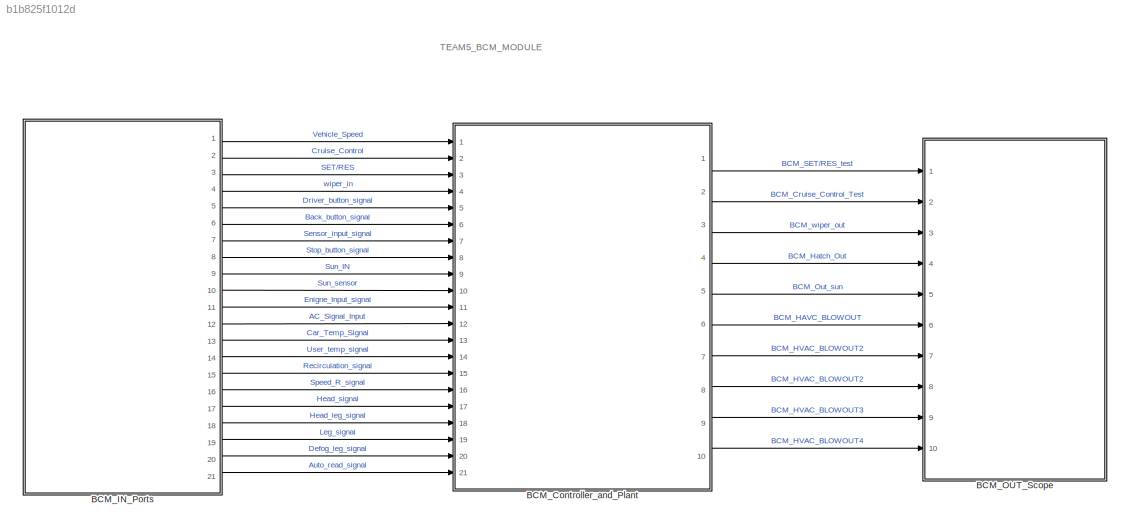
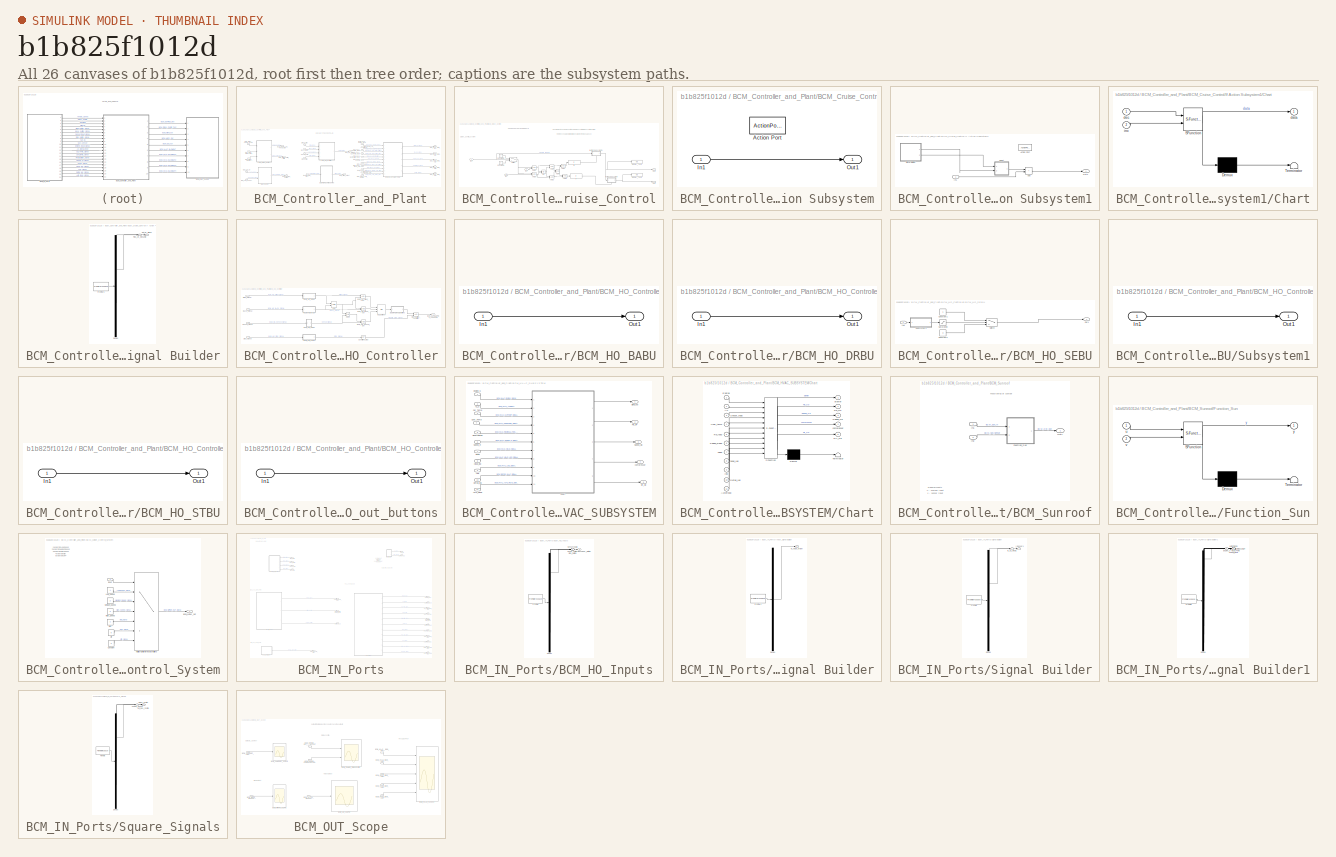
[diagram: thumbnail index - all 26 canvases of the model, root first then tree order]
MODEL slx_b1b825f1012d
KIND model
CONFIG AbsTol = auto
CONFIG EnableMultiTasking = off
CONFIG FixedStep = auto
CONFIG MaxStep = auto
CONFIG MinStep = auto
CONFIG RelTol = 1e-3
CONFIG SampleTimeConstraint = Unconstrained
CONFIG SolverName = VariableStepAuto
CONFIG StartTime = 0.0
CONFIG StopTime = 100
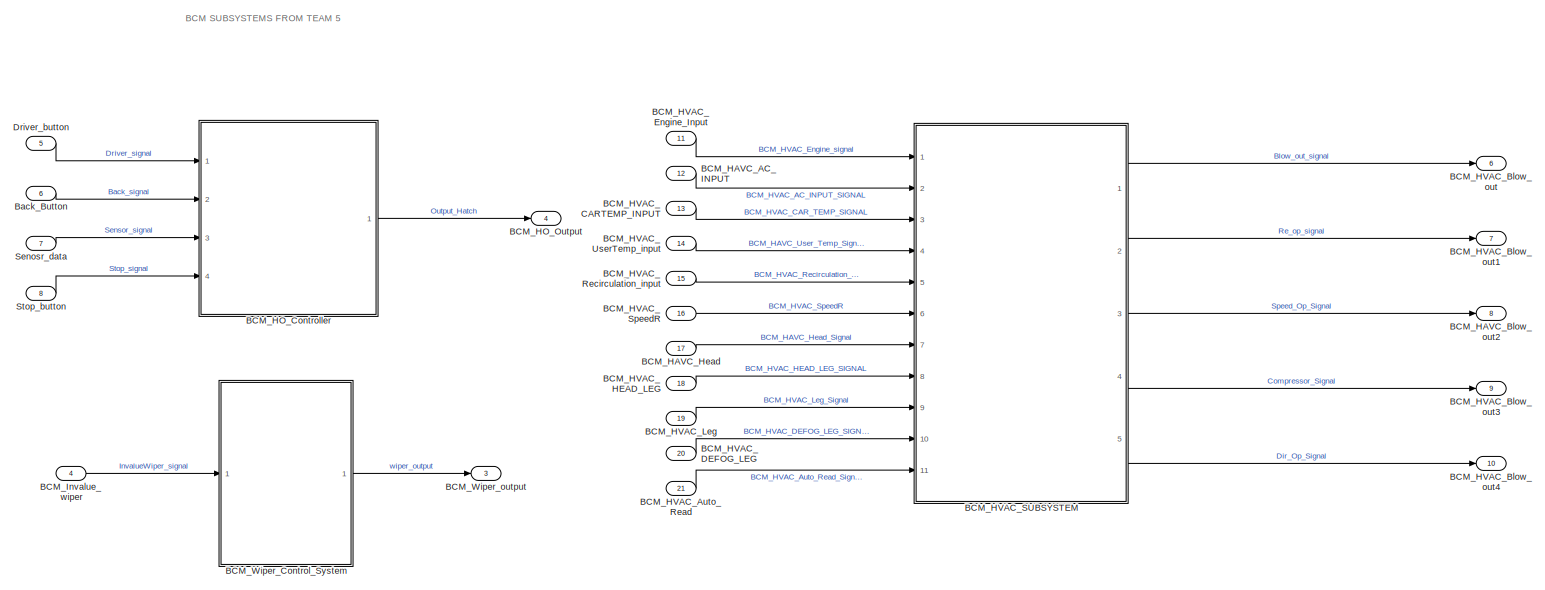
[diagram: BCM_Controller_and_Plant - part 1/2, center side, full height]
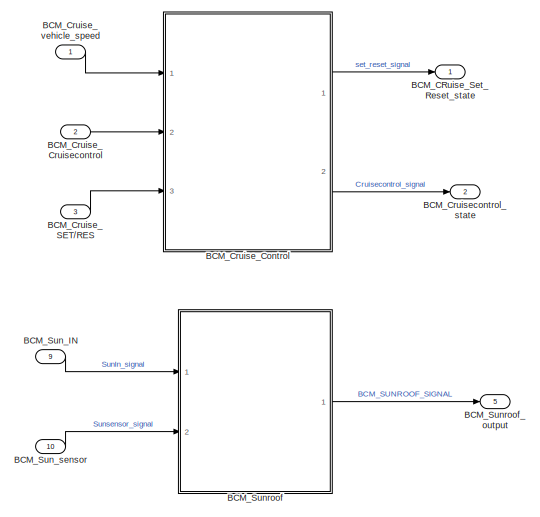
[diagram: BCM_Controller_and_Plant - part 2/2, left side, full height]
BLOCK [SubSystem] BCM_Controller_and_Plant
  Ports = [21, 10]
  RequestExecContextInheritance = off
BLOCK [Outport] BCM_Controller_and_Plant/BCM_CRuise_Set_Reset_state
BLOCK [SubSystem] BCM_Controller_and_Plant/BCM_Cruise_Control
  Ports = [3, 2]
  RequestExecContextInheritance = off
BLOCK [Logic] BCM_Controller_and_Plant/BCM_Cruise_Control/AND
  AllPortsSameDT = off
  IconShape = distinctive
  OutDataTypeStr = boolean
  Ports = [2, 1]
BLOCK [Logic] BCM_Controller_and_Plant/BCM_Cruise_Control/AND1
  AllPortsSameDT = off
  IconShape = distinctive
  OutDataTypeStr = boolean
  Ports = [2, 1]
BLOCK [Logic] BCM_Controller_and_Plant/BCM_Cruise_Control/AND2
  AllPortsSameDT = off
  IconShape = distinctive
  OutDataTypeStr = boolean
  Ports = [2, 1]
BLOCK [Logic] BCM_Controller_and_Plant/BCM_Cruise_Control/AND3
  AllPortsSameDT = off
  IconShape = distinctive
  OutDataTypeStr = boolean
  Ports = [2, 1]
BLOCK [Logic] BCM_Controller_and_Plant/BCM_Cruise_Control/AND4
  AllPortsSameDT = off
  IconShape = distinctive
  OutDataTypeStr = boolean
  Ports = [2, 1]
BLOCK [Logic] BCM_Controller_and_Plant/BCM_Cruise_Control/AND5
  AllPortsSameDT = off
  IconShape = distinctive
  OutDataTypeStr = boolean
  Ports = [2, 1]
BLOCK [Constant] BCM_Controller_and_Plant/BCM_Cruise_Control/Constant2
BLOCK [Constant] BCM_Controller_and_Plant/BCM_Cruise_Control/Constant4
  Value = 0
BLOCK [Display] BCM_Controller_and_Plant/BCM_Cruise_Control/Display_Test1
  Decimation = 1
  Ports = [1]
BLOCK [Display] BCM_Controller_and_Plant/BCM_Cruise_Control/Display_Test2
  Decimation = 1
  Ports = [1]
BLOCK [If] BCM_Controller_and_Plant/BCM_Cruise_Control/If
  IfExpression = u1 == 1
  Ports = [1, 1]
  ShowElse = off
BLOCK [SubSystem] BCM_Controller_and_Plant/BCM_Cruise_Control/If Action Subsystem
  NameLocation = top
  Ports = [1, 1, 0, 0, 0, 0, 0, 1]
  RequestExecContextInheritance = off
  TreatAsAtomicUnit = on
BLOCK [ActionPort] BCM_Controller_and_Plant/BCM_Cruise_Control/If Action Subsystem/Action Port
  ActionPortLabel = if(u1 == 1)
BLOCK [Inport] BCM_Controller_and_Plant/BCM_Cruise_Control/If Action Subsystem/In1
BLOCK [Outport] BCM_Controller_and_Plant/BCM_Cruise_Control/If Action Subsystem/Out1
BLOCK [SubSystem] BCM_Controller_and_Plant/BCM_Cruise_Control/If Action Subsystem1
  NameLocation = top
  Ports = [1, 1, 0, 0, 0, 0, 0, 1]
  RequestExecContextInheritance = off
  TreatAsAtomicUnit = on
BLOCK [ActionPort] BCM_Controller_and_Plant/BCM_Cruise_Control/If Action Subsystem1/Action Port
  ActionPortLabel = if(u1 == 1)
BLOCK [Sum] BCM_Controller_and_Plant/BCM_Cruise_Control/If Action Subsystem1/Add
  IconShape = rectangular
  Ports = [2, 1]
BLOCK [SubSystem] BCM_Controller_and_Plant/BCM_Cruise_Control/If Action Subsystem1/Chart
  ErrorFcn = Stateflow.Translate.translate
  PermitHierarchicalResolution = ExplicitOnly
  Ports = [2, 1]
  RequestExecContextInheritance = off
  SFBlockType = Chart
  TreatAsAtomicUnit = on
BLOCK [Demux] BCM_Controller_and_Plant/BCM_Cruise_Control/If Action Subsystem1/Chart/ Demux 
  Outputs = 1
  Ports = [1, 1]
BLOCK [S-Function] BCM_Controller_and_Plant/BCM_Cruise_Control/If Action Subsystem1/Chart/ SFunction 
  EnableBusSupport = on
  FunctionName = sf_sfun
  PortCounts = [2 2]
  Ports = [2, 2]
  SFcnIsStateOwnerBlock = off
  SFunctionDeploymentMode = off
  Tag = Stateflow S-Function 1
BLOCK [Terminator] BCM_Controller_and_Plant/BCM_Cruise_Control/If Action Subsystem1/Chart/ Terminator 
BLOCK [Outport] BCM_Controller_and_Plant/BCM_Cruise_Control/If Action Subsystem1/Chart/data
BLOCK [Inport] BCM_Controller_and_Plant/BCM_Cruise_Control/If Action Subsystem1/Chart/dec
BLOCK [Inport] BCM_Controller_and_Plant/BCM_Cruise_Control/If Action Subsystem1/Chart/inc
  Port = 2
BLOCK [Inport] BCM_Controller_and_Plant/BCM_Cruise_Control/If Action Subsystem1/In1
BLOCK [Outport] BCM_Controller_and_Plant/BCM_Cruise_Control/If Action Subsystem1/Out1
BLOCK [SubSystem] BCM_Controller_and_Plant/BCM_Cruise_Control/If Action Subsystem1/Signal Builder
  ClipboardFcn = sigbuilder_block('clipboard');
  CloseFcn = sigbuilder_block('close');
  ContinueFcn = sigbuilder_block('continue');
  CopyFcn = sigbuilder_block('copy');
  DeleteFcn = sigbuilder_block('delete');
  LoadFcn = sigbuilder_block('load');
  MaskHideContents = on
  ModelCloseFcn = sigbuilder_block('modelClose');
  NameChangeFcn = sigbuilder_block('namechange');
  OpenFcn = sigbuilder_block('open',[0.75 30.75 718.5 715.5 ]);
  PauseFcn = sigbuilder_block('pause');
  Ports = [0, 2]
  PreSaveFcn = sigbuilder_block('preSave');
  RequestExecContextInheritance = off
  StartFcn = sigbuilder_block('start');
  StopFcn = sigbuilder_block('stop');
  Tag = STV Subsys
BLOCK [Demux] BCM_Controller_and_Plant/BCM_Cruise_Control/If Action Subsystem1/Signal Builder/Demux
  DisplayOption = none
  Outputs = 2
  Ports = [1, 2]
  Tag = STV Demux
BLOCK [FromWorkspace] BCM_Controller_and_Plant/BCM_Cruise_Control/If Action Subsystem1/Signal Builder/FromWs
  Tag = STV FromWs
  VariableName = tuvar
BLOCK [Outport] BCM_Controller_and_Plant/BCM_Cruise_Control/If Action Subsystem1/Signal Builder/Plus_Or_Resume
  Tag = STV Outport
BLOCK [Outport] BCM_Controller_and_Plant/BCM_Cruise_Control/If Action Subsystem1/Signal Builder/Set_Or_Minus
  Port = 2
  Tag = STV Outport
BLOCK [If] BCM_Controller_and_Plant/BCM_Cruise_Control/If1
  IfExpression = u1 == 1
  Ports = [1, 1]
  ShowElse = off
BLOCK [Inport] BCM_Controller_and_Plant/BCM_Cruise_Control/In1
BLOCK [Inport] BCM_Controller_and_Plant/BCM_Cruise_Control/In2
  Port = 2
BLOCK [Inport] BCM_Controller_and_Plant/BCM_Cruise_Control/In3
  Port = 3
BLOCK [Logic] BCM_Controller_and_Plant/BCM_Cruise_Control/OR
  AllPortsSameDT = off
  IconShape = distinctive
  Operator = OR
  OutDataTypeStr = boolean
  Ports = [2, 1]
BLOCK [Outport] BCM_Controller_and_Plant/BCM_Cruise_Control/Out1
BLOCK [Outport] BCM_Controller_and_Plant/BCM_Cruise_Control/Out2
  Port = 2
BLOCK [Switch] BCM_Controller_and_Plant/BCM_Cruise_Control/Switch
  InputSameDT = off
  SaturateOnIntegerOverflow = off
  Threshold = 40
BLOCK [Logic] BCM_Controller_and_Plant/BCM_Cruise_Control/XOR
  AllPortsSameDT = off
  IconShape = distinctive
  Operator = XOR
  OutDataTypeStr = boolean
  Ports = [2, 1]
BLOCK [Inport] BCM_Controller_and_Plant/BCM_Cruise_Cruisecontrol
  Port = 2
BLOCK [Inport] BCM_Controller_and_Plant/BCM_Cruise_SET//RES
  Port = 3
BLOCK [Inport] BCM_Controller_and_Plant/BCM_Cruise_vehicle_speed
BLOCK [Outport] BCM_Controller_and_Plant/BCM_Cruisecontrol_state
  Port = 2
BLOCK [Inport] BCM_Controller_and_Plant/BCM_HAVC_AC_INPUT
  Port = 12
BLOCK [Outport] BCM_Controller_and_Plant/BCM_HAVC_Blow_out2
  Port = 8
BLOCK [Inport] BCM_Controller_and_Plant/BCM_HAVC_Head
  Port = 17
BLOCK [SubSystem] BCM_Controller_and_Plant/BCM_HO_Controller
  Ports = [4, 1]
  RequestExecContextInheritance = off
BLOCK [Outport] BCM_Controller_and_Plant/BCM_HO_Controller/BCM_HATCHOPEN_CONDITION
BLOCK [SubSystem] BCM_Controller_and_Plant/BCM_HO_Controller/BCM_HO_BABU
  Ports = [1, 1]
  RequestExecContextInheritance = off
BLOCK [Inport] BCM_Controller_and_Plant/BCM_HO_Controller/BCM_HO_BABU/In1
BLOCK [Outport] BCM_Controller_and_Plant/BCM_HO_Controller/BCM_HO_BABU/Out1
BLOCK [Logic] BCM_Controller_and_Plant/BCM_HO_Controller/BCM_HO_Back_out
  AllPortsSameDT = off
  IconShape = distinctive
  OutDataTypeStr = boolean
  Ports = [2, 1]
BLOCK [SubSystem] BCM_Controller_and_Plant/BCM_HO_Controller/BCM_HO_DRBU
  Ports = [1, 1]
  RequestExecContextInheritance = off
BLOCK [Inport] BCM_Controller_and_Plant/BCM_HO_Controller/BCM_HO_DRBU/In1
BLOCK [Outport] BCM_Controller_and_Plant/BCM_HO_Controller/BCM_HO_DRBU/Out1
BLOCK [Logic] BCM_Controller_and_Plant/BCM_HO_Controller/BCM_HO_Driver_out
  AllPortsSameDT = off
  IconShape = distinctive
  OutDataTypeStr = boolean
  Ports = [2, 1]
BLOCK [SubSystem] BCM_Controller_and_Plant/BCM_HO_Controller/BCM_HO_SEBU
  Ports = [1, 1]
  RequestExecContextInheritance = off
BLOCK [Constant] BCM_Controller_and_Plant/BCM_HO_Controller/BCM_HO_SEBU/Constant1
BLOCK [Constant] BCM_Controller_and_Plant/BCM_HO_Controller/BCM_HO_SEBU/Constant2
  Value = 0
BLOCK [Inport] BCM_Controller_and_Plant/BCM_HO_Controller/BCM_HO_SEBU/In1
BLOCK [Outport] BCM_Controller_and_Plant/BCM_HO_Controller/BCM_HO_SEBU/Out1
BLOCK [Saturate] BCM_Controller_and_Plant/BCM_HO_Controller/BCM_HO_SEBU/Saturation
  LowerLimit = 0
  UpperLimit = 3.6
BLOCK [SubSystem] BCM_Controller_and_Plant/BCM_HO_Controller/BCM_HO_SEBU/Subsystem1
  Ports = [1, 1]
  RequestExecContextInheritance = off
BLOCK [Inport] BCM_Controller_and_Plant/BCM_HO_Controller/BCM_HO_SEBU/Subsystem1/In1
BLOCK [Outport] BCM_Controller_and_Plant/BCM_HO_Controller/BCM_HO_SEBU/Subsystem1/Out1
BLOCK [Switch] BCM_Controller_and_Plant/BCM_HO_Controller/BCM_HO_SEBU/Switch
  Criteria = u2 > Threshold
  InputSameDT = off
  SaturateOnIntegerOverflow = off
  Threshold = 2.3
BLOCK [SubSystem] BCM_Controller_and_Plant/BCM_HO_Controller/BCM_HO_STBU
  Ports = [1, 1]
  RequestExecContextInheritance = off
BLOCK [Inport] BCM_Controller_and_Plant/BCM_HO_Controller/BCM_HO_STBU/In1
BLOCK [Outport] BCM_Controller_and_Plant/BCM_HO_Controller/BCM_HO_STBU/Out1
BLOCK [Logic] BCM_Controller_and_Plant/BCM_HO_Controller/BCM_HO_Sensor_Out
  AllPortsSameDT = off
  IconShape = distinctive
  OutDataTypeStr = boolean
  Ports = [2, 1]
BLOCK [SubSystem] BCM_Controller_and_Plant/BCM_HO_Controller/BCM_HO_out_buttons
  Ports = [1, 1]
  RequestExecContextInheritance = off
BLOCK [Inport] BCM_Controller_and_Plant/BCM_HO_Controller/BCM_HO_out_buttons/In1
BLOCK [Outport] BCM_Controller_and_Plant/BCM_HO_Controller/BCM_HO_out_buttons/Out1
BLOCK [Inport] BCM_Controller_and_Plant/BCM_HO_Controller/Back_Signal
  Port = 2
BLOCK [Logic] BCM_Controller_and_Plant/BCM_HO_Controller/Condition_Stop
  AllPortsSameDT = off
  IconShape = distinctive
  Operator = NOT
  OutDataTypeStr = boolean
  Ports = [1, 1]
BLOCK [Inport] BCM_Controller_and_Plant/BCM_HO_Controller/Driver_Signal
BLOCK [Logic] BCM_Controller_and_Plant/BCM_HO_Controller/Out_Buttons
  AllPortsSameDT = off
  IconShape = distinctive
  Inputs = 3
  Operator = OR
  OutDataTypeStr = boolean
  Ports = [3, 1]
BLOCK [Inport] BCM_Controller_and_Plant/BCM_HO_Controller/Sensor_signal
  Port = 3
BLOCK [Logic] BCM_Controller_and_Plant/BCM_HO_Controller/Stop_button_condition
  AllPortsSameDT = off
  IconShape = distinctive
  OutDataTypeStr = boolean
  Ports = [2, 1]
BLOCK [Inport] BCM_Controller_and_Plant/BCM_HO_Controller/Stop_signal
  Port = 4
BLOCK [Logic] BCM_Controller_and_Plant/BCM_HO_Controller/XOR
  AllPortsSameDT = off
  IconShape = distinctive
  Operator = XOR
  OutDataTypeStr = boolean
  Ports = [2, 1]
BLOCK [Logic] BCM_Controller_and_Plant/BCM_HO_Controller/XOR1
  AllPortsSameDT = off
  IconShape = distinctive
  Operator = XOR
  OutDataTypeStr = boolean
  Ports = [2, 1]
BLOCK [Outport] BCM_Controller_and_Plant/BCM_HO_Output
  Port = 4
BLOCK [Inport] BCM_Controller_and_Plant/BCM_HVAC_Auto_Read
  Port = 21
BLOCK [Outport] BCM_Controller_and_Plant/BCM_HVAC_Blow_out
  Port = 6
BLOCK [Outport] BCM_Controller_and_Plant/BCM_HVAC_Blow_out1
  Port = 7
BLOCK [Outport] BCM_Controller_and_Plant/BCM_HVAC_Blow_out3
  Port = 9
BLOCK [Outport] BCM_Controller_and_Plant/BCM_HVAC_Blow_out4
  Port = 10
BLOCK [Inport] BCM_Controller_and_Plant/BCM_HVAC_CARTEMP_INPUT
  Port = 13
BLOCK [Inport] BCM_Controller_and_Plant/BCM_HVAC_DEFOG_LEG
  Port = 20
BLOCK [Inport] BCM_Controller_and_Plant/BCM_HVAC_Engine_Input
  Port = 11
BLOCK [Inport] BCM_Controller_and_Plant/BCM_HVAC_HEAD_LEG
  Port = 18
BLOCK [Inport] BCM_Controller_and_Plant/BCM_HVAC_Leg
  Port = 19
BLOCK [Inport] BCM_Controller_and_Plant/BCM_HVAC_Recirculation_input
  Port = 15
BLOCK [SubSystem] BCM_Controller_and_Plant/BCM_HVAC_SUBSYSTEM
  Ports = [11, 5]
  RequestExecContextInheritance = off
BLOCK [Inport] BCM_Controller_and_Plant/BCM_HVAC_SUBSYSTEM/AC_S
  Port = 2
BLOCK [Inport] BCM_Controller_and_Plant/BCM_HVAC_SUBSYSTEM/Auto_Read
  Port = 11
BLOCK [Outport] BCM_Controller_and_Plant/BCM_HVAC_SUBSYSTEM/Blow_out
BLOCK [Inport] BCM_Controller_and_Plant/BCM_HVAC_SUBSYSTEM/Car_Temp
  Port = 3
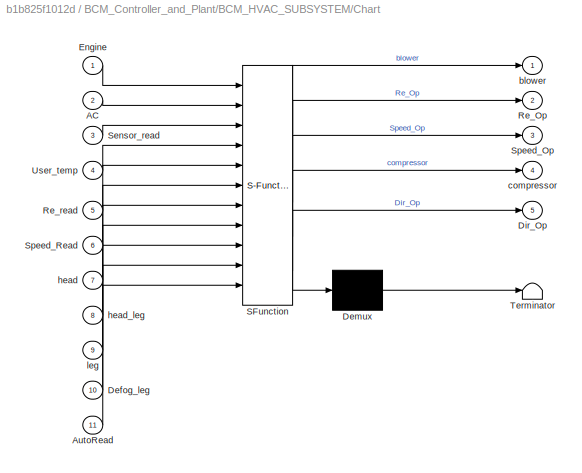
BLOCK [SubSystem] BCM_Controller_and_Plant/BCM_HVAC_SUBSYSTEM/Chart
  ErrorFcn = Stateflow.Translate.translate
  PermitHierarchicalResolution = ExplicitOnly
  Ports = [11, 5]
  RequestExecContextInheritance = off
  SFBlockType = Chart
  TreatAsAtomicUnit = on
BLOCK [Demux] BCM_Controller_and_Plant/BCM_HVAC_SUBSYSTEM/Chart/ Demux 
  Outputs = 1
  Ports = [1, 1]
BLOCK [S-Function] BCM_Controller_and_Plant/BCM_HVAC_SUBSYSTEM/Chart/ SFunction 
  EnableBusSupport = on
  FunctionName = sf_sfun
  PortCounts = [11 6]
  Ports = [11, 6]
  SFcnIsStateOwnerBlock = off
  SFunctionDeploymentMode = off
  Tag = Stateflow S-Function 3
BLOCK [Terminator] BCM_Controller_and_Plant/BCM_HVAC_SUBSYSTEM/Chart/ Terminator 
BLOCK [Inport] BCM_Controller_and_Plant/BCM_HVAC_SUBSYSTEM/Chart/AC
  Port = 2
BLOCK [Inport] BCM_Controller_and_Plant/BCM_HVAC_SUBSYSTEM/Chart/AutoRead
  Port = 11
BLOCK [Inport] BCM_Controller_and_Plant/BCM_HVAC_SUBSYSTEM/Chart/Defog_leg
  Port = 10
BLOCK [Outport] BCM_Controller_and_Plant/BCM_HVAC_SUBSYSTEM/Chart/Dir_Op
  Port = 5
BLOCK [Inport] BCM_Controller_and_Plant/BCM_HVAC_SUBSYSTEM/Chart/Engine
BLOCK [Outport] BCM_Controller_and_Plant/BCM_HVAC_SUBSYSTEM/Chart/Re_Op
  Port = 2
BLOCK [Inport] BCM_Controller_and_Plant/BCM_HVAC_SUBSYSTEM/Chart/Re_read
  Port = 5
BLOCK [Inport] BCM_Controller_and_Plant/BCM_HVAC_SUBSYSTEM/Chart/Sensor_read
  Port = 3
BLOCK [Outport] BCM_Controller_and_Plant/BCM_HVAC_SUBSYSTEM/Chart/Speed_Op
  Port = 3
BLOCK [Inport] BCM_Controller_and_Plant/BCM_HVAC_SUBSYSTEM/Chart/Speed_Read
  Port = 6
BLOCK [Inport] BCM_Controller_and_Plant/BCM_HVAC_SUBSYSTEM/Chart/User_temp
  Port = 4
BLOCK [Outport] BCM_Controller_and_Plant/BCM_HVAC_SUBSYSTEM/Chart/blower
BLOCK [Outport] BCM_Controller_and_Plant/BCM_HVAC_SUBSYSTEM/Chart/compressor
  Port = 4
BLOCK [Inport] BCM_Controller_and_Plant/BCM_HVAC_SUBSYSTEM/Chart/head
  Port = 7
BLOCK [Inport] BCM_Controller_and_Plant/BCM_HVAC_SUBSYSTEM/Chart/head_leg
  Port = 8
BLOCK [Inport] BCM_Controller_and_Plant/BCM_HVAC_SUBSYSTEM/Chart/leg
  Port = 9
BLOCK [Inport] BCM_Controller_and_Plant/BCM_HVAC_SUBSYSTEM/Defog_leg
  Port = 10
BLOCK [Inport] BCM_Controller_and_Plant/BCM_HVAC_SUBSYSTEM/Engine_S
BLOCK [Inport] BCM_Controller_and_Plant/BCM_HVAC_SUBSYSTEM/Head
  Port = 7
BLOCK [Inport] BCM_Controller_and_Plant/BCM_HVAC_SUBSYSTEM/Head_leg
  Port = 8
BLOCK [Inport] BCM_Controller_and_Plant/BCM_HVAC_SUBSYSTEM/Leg
  Port = 9
BLOCK [Outport] BCM_Controller_and_Plant/BCM_HVAC_SUBSYSTEM/Re_OP
  Port = 2
BLOCK [Inport] BCM_Controller_and_Plant/BCM_HVAC_SUBSYSTEM/Recirculation
  Port = 5
BLOCK [Outport] BCM_Controller_and_Plant/BCM_HVAC_SUBSYSTEM/Speed_Op
  Port = 3
BLOCK [Inport] BCM_Controller_and_Plant/BCM_HVAC_SUBSYSTEM/Speed_R
  Port = 6
BLOCK [Inport] BCM_Controller_and_Plant/BCM_HVAC_SUBSYSTEM/User_Temp
  Port = 4
BLOCK [Outport] BCM_Controller_and_Plant/BCM_HVAC_SUBSYSTEM/compressor
  Port = 4
BLOCK [Outport] BCM_Controller_and_Plant/BCM_HVAC_SUBSYSTEM/dir_Op
  Port = 5
BLOCK [Inport] BCM_Controller_and_Plant/BCM_HVAC_SpeedR
  Port = 16
BLOCK [Inport] BCM_Controller_and_Plant/BCM_HVAC_UserTemp_input
  Port = 14
BLOCK [Inport] BCM_Controller_and_Plant/BCM_Invalue_wiper
  Port = 4
BLOCK [Inport] BCM_Controller_and_Plant/BCM_Sun_IN
  Port = 9
BLOCK [Inport] BCM_Controller_and_Plant/BCM_Sun_sensor
  Port = 10
BLOCK [SubSystem] BCM_Controller_and_Plant/BCM_Sunroof
  Ports = [2, 1]
  RequestExecContextInheritance = off
BLOCK [SubSystem] BCM_Controller_and_Plant/BCM_Sunroof/Function_Sun
  ErrorFcn = Stateflow.Translate.translate
  PermitHierarchicalResolution = ExplicitOnly
  Ports = [2, 1]
  RequestExecContextInheritance = off
  SFBlockType = MATLAB Function
  TreatAsAtomicUnit = on
BLOCK [Demux] BCM_Controller_and_Plant/BCM_Sunroof/Function_Sun/ Demux 
  Outputs = 1
  Ports = [1, 1]
BLOCK [S-Function] BCM_Controller_and_Plant/BCM_Sunroof/Function_Sun/ SFunction 
  EnableBusSupport = on
  FunctionName = sf_sfun
  PortCounts = [2 2]
  Ports = [2, 2]
  SFcnIsStateOwnerBlock = off
  SFunctionDeploymentMode = off
  Tag = Stateflow S-Function 2
BLOCK [Terminator] BCM_Controller_and_Plant/BCM_Sunroof/Function_Sun/ Terminator 
BLOCK [Inport] BCM_Controller_and_Plant/BCM_Sunroof/Function_Sun/u
BLOCK [Inport] BCM_Controller_and_Plant/BCM_Sunroof/Function_Sun/v
  Port = 2
BLOCK [Outport] BCM_Controller_and_Plant/BCM_Sunroof/Function_Sun/y
BLOCK [Inport] BCM_Controller_and_Plant/BCM_Sunroof/In1
BLOCK [Inport] BCM_Controller_and_Plant/BCM_Sunroof/In2
  Port = 2
BLOCK [Outport] BCM_Controller_and_Plant/BCM_Sunroof/Out1
BLOCK [Outport] BCM_Controller_and_Plant/BCM_Sunroof_output
  Port = 5
BLOCK [SubSystem] BCM_Controller_and_Plant/BCM_Wiper_Control_System
  Ports = [1, 1]
  RequestExecContextInheritance = off
BLOCK [Outport] BCM_Controller_and_Plant/BCM_Wiper_Control_System/BCM_Wiper_Out
BLOCK [Constant] BCM_Controller_and_Plant/BCM_Wiper_Control_System/Constant
  Value = 0
BLOCK [Constant] BCM_Controller_and_Plant/BCM_Wiper_Control_System/High_Speed
  Value = 3
BLOCK [Inport] BCM_Controller_and_Plant/BCM_Wiper_Control_System/Input
BLOCK [Constant] BCM_Controller_and_Plant/BCM_Wiper_Control_System/Low_Speed
BLOCK [Constant] BCM_Controller_and_Plant/BCM_Wiper_Control_System/Medium_Speed
  Value = 2
BLOCK [Constant] BCM_Controller_and_Plant/BCM_Wiper_Control_System/Mist
  Value = 4
BLOCK [MultiPortSwitch] BCM_Controller_and_Plant/BCM_Wiper_Control_System/Multiport Switch for input conditions
  DiagnosticForDefault = None
  InputSameDT = off
  Inputs = 6
  Ports = [7, 1]
  SaturateOnIntegerOverflow = off
BLOCK [Constant] BCM_Controller_and_Plant/BCM_Wiper_Control_System/Off
  Value = 5
BLOCK [Outport] BCM_Controller_and_Plant/BCM_Wiper_output
  Port = 3
BLOCK [Inport] BCM_Controller_and_Plant/Back_Button
  Port = 6
BLOCK [Inport] BCM_Controller_and_Plant/Driver_button
  Port = 5
BLOCK [Inport] BCM_Controller_and_Plant/Senosr_data
  Port = 7
BLOCK [Inport] BCM_Controller_and_Plant/Stop_button
  Port = 8
BLOCK [SubSystem] BCM_IN_Ports
  Ports = [0, 21]
  RequestExecContextInheritance = off
BLOCK [Outport] BCM_IN_Ports/AC_Signal_Input
  Port = 12
BLOCK [Outport] BCM_IN_Ports/Auto_Read_signal_Input
  Port = 21
BLOCK [SubSystem] BCM_IN_Ports/BCM_HO_Inputs
  ClipboardFcn = sigbuilder_block('clipboard');
  CloseFcn = sigbuilder_block('close');
  ContinueFcn = sigbuilder_block('continue');
  CopyFcn = sigbuilder_block('copy');
  DeleteFcn = sigbuilder_block('delete');
  LoadFcn = sigbuilder_block('load');
  MaskHideContents = on
  ModelCloseFcn = sigbuilder_block('modelClose');
  NameChangeFcn = sigbuilder_block('namechange');
  OpenFcn = sigbuilder_block('open',[437.6 199.2 550.4 400 ]);
  PauseFcn = sigbuilder_block('pause');
  Ports = [0, 4]
  PreSaveFcn = sigbuilder_block('preSave');
  RequestExecContextInheritance = off
  StartFcn = sigbuilder_block('start');
  StopFcn = sigbuilder_block('stop');
  Tag = STV Subsys
BLOCK [Outport] BCM_IN_Ports/BCM_HO_Inputs/BackDoor_Button
  Port = 2
  Tag = STV Outport
BLOCK [Demux] BCM_IN_Ports/BCM_HO_Inputs/Demux
  DisplayOption = none
  Ports = [1, 4]
  Tag = STV Demux
BLOCK [Outport] BCM_IN_Ports/BCM_HO_Inputs/Driver_button
  Tag = STV Outport
BLOCK [FromWorkspace] BCM_IN_Ports/BCM_HO_Inputs/FromWs
  Tag = STV FromWs
  VariableName = tuvar
BLOCK [Outport] BCM_IN_Ports/BCM_HO_Inputs/Sensore Data
  Port = 3
  Tag = STV Outport
BLOCK [Outport] BCM_IN_Ports/BCM_HO_Inputs/Stop_Button
  Port = 4
  Tag = STV Outport
BLOCK [Outport] BCM_IN_Ports/BCM_IN_VALUE_Wiper
  Port = 4
BLOCK [Outport] BCM_IN_Ports/Back_Button
  Port = 6
BLOCK [Outport] BCM_IN_Ports/Car_Temp_Signal_input
  Port = 13
BLOCK [Outport] BCM_IN_Ports/Cruise_control_speed_input
  Port = 2
BLOCK [Outport] BCM_IN_Ports/Defog_Leg_signal_Input
  Port = 20
BLOCK [Outport] BCM_IN_Ports/Driver_button
  Port = 5
BLOCK [Outport] BCM_IN_Ports/Engine_Input
  Port = 11
BLOCK [Outport] BCM_IN_Ports/Head_leg_signal_Input
  Port = 18
BLOCK [Outport] BCM_IN_Ports/Head_signal_Input
  Port = 17
BLOCK [SubSystem] BCM_IN_Ports/Input_Signal Builder
  ClipboardFcn = sigbuilder_block('clipboard');
  CloseFcn = sigbuilder_block('close');
  ContinueFcn = sigbuilder_block('continue');
  CopyFcn = sigbuilder_block('copy');
  DeleteFcn = sigbuilder_block('delete');
  LoadFcn = sigbuilder_block('load');
  MaskHideContents = on
  ModelCloseFcn = sigbuilder_block('modelClose');
  NameChangeFcn = sigbuilder_block('namechange');
  OpenFcn = sigbuilder_block('open',[339 188.25 550.5 359.25 ]);
  PauseFcn = sigbuilder_block('pause');
  Ports = [0, 1]
  PreSaveFcn = sigbuilder_block('preSave');
  RequestExecContextInheritance = off
  StartFcn = sigbuilder_block('start');
  StopFcn = sigbuilder_block('stop');
  Tag = STV Subsys
BLOCK [Demux] BCM_IN_Ports/Input_Signal Builder/Demux
  DisplayOption = none
  Outputs = 1
  Ports = [1, 1]
  Tag = STV Demux
BLOCK [FromWorkspace] BCM_IN_Ports/Input_Signal Builder/FromWs
  Tag = STV FromWs
  VariableName = tuvar
BLOCK [Outport] BCM_IN_Ports/Input_Signal Builder/In_Value_Wiper
  Tag = STV Outport
BLOCK [Outport] BCM_IN_Ports/Leg_signal_Input
  Port = 19
BLOCK [Outport] BCM_IN_Ports/Recirculation_signal_Input
  Port = 15
BLOCK [Outport] BCM_IN_Ports/Senosr_data
  Port = 7
BLOCK [Outport] BCM_IN_Ports/Set_res_input
  Port = 3
BLOCK [SubSystem] BCM_IN_Ports/Signal Builder
  ClipboardFcn = sigbuilder_block('clipboard');
  CloseFcn = sigbuilder_block('close');
  ContinueFcn = sigbuilder_block('continue');
  CopyFcn = sigbuilder_block('copy');
  DeleteFcn = sigbuilder_block('delete');
  LoadFcn = sigbuilder_block('load');
  MaskHideContents = on
  ModelCloseFcn = sigbuilder_block('modelClose');
  NameChangeFcn = sigbuilder_block('namechange');
  OpenFcn = sigbuilder_block('open',[534 -108 550.5 359.25 ]);
  PauseFcn = sigbuilder_block('pause');
  Ports = [0, 2]
  PreSaveFcn = sigbuilder_block('preSave');
  RequestExecContextInheritance = off
  StartFcn = sigbuilder_block('start');
  StopFcn = sigbuilder_block('stop');
  Tag = STV Subsys
BLOCK [Demux] BCM_IN_Ports/Signal Builder/Demux
  DisplayOption = none
  Outputs = 2
  Ports = [1, 2]
  Tag = STV Demux
BLOCK [FromWorkspace] BCM_IN_Ports/Signal Builder/FromWs
  Tag = STV FromWs
  VariableName = tuvar
BLOCK [Outport] BCM_IN_Ports/Signal Builder/I_Sensor1
  Port = 2
  Tag = STV Outport
BLOCK [Outport] BCM_IN_Ports/Signal Builder/In_Su_Roof1
  Tag = STV Outport
BLOCK [SubSystem] BCM_IN_Ports/Signal Builder1
  ClipboardFcn = sigbuilder_block('clipboard');
  CloseFcn = sigbuilder_block('close');
  ContinueFcn = sigbuilder_block('continue');
  CopyFcn = sigbuilder_block('copy');
  DeleteFcn = sigbuilder_block('delete');
  LoadFcn = sigbuilder_block('load');
  MaskHideContents = on
  ModelCloseFcn = sigbuilder_block('modelClose');
  NameChangeFcn = sigbuilder_block('namechange');
  OpenFcn = sigbuilder_block('open',[437.6 199.2 550.4 400 ]);
  PauseFcn = sigbuilder_block('pause');
  Ports = [0, 11]
  PreSaveFcn = sigbuilder_block('preSave');
  RequestExecContextInheritance = off
  StartFcn = sigbuilder_block('start');
  StopFcn = sigbuilder_block('stop');
  Tag = STV Subsys
BLOCK [Outport] BCM_IN_Ports/Signal Builder1/      Engine_S  
  Tag = STV Outport
BLOCK [Outport] BCM_IN_Ports/Signal Builder1/AC_S
  Port = 2
  Tag = STV Outport
BLOCK [Outport] BCM_IN_Ports/Signal Builder1/Auto_Read
  Port = 11
  Tag = STV Outport
BLOCK [Outport] BCM_IN_Ports/Signal Builder1/Car_Temp
  Port = 3
  Tag = STV Outport
BLOCK [Outport] BCM_IN_Ports/Signal Builder1/Defog_Leg
  Port = 10
  Tag = STV Outport
BLOCK [Demux] BCM_IN_Ports/Signal Builder1/Demux
  DisplayOption = none
  Outputs = 11
  Ports = [1, 11]
  Tag = STV Demux
BLOCK [FromWorkspace] BCM_IN_Ports/Signal Builder1/FromWs
  Tag = STV FromWs
  VariableName = tuvar
BLOCK [Outport] BCM_IN_Ports/Signal Builder1/Head
  Port = 7
  Tag = STV Outport
BLOCK [Outport] BCM_IN_Ports/Signal Builder1/Head_leg
  Port = 8
  Tag = STV Outport
BLOCK [Outport] BCM_IN_Ports/Signal Builder1/Leg
  Port = 9
  Tag = STV Outport
BLOCK [Outport] BCM_IN_Ports/Signal Builder1/Recirculation
  Port = 5
  Tag = STV Outport
BLOCK [Outport] BCM_IN_Ports/Signal Builder1/Speed_R
  Port = 6
  Tag = STV Outport
BLOCK [Outport] BCM_IN_Ports/Signal Builder1/User_Temp
  Port = 4
  Tag = STV Outport
BLOCK [Outport] BCM_IN_Ports/Speed_R_input
  Port = 16
BLOCK [SubSystem] BCM_IN_Ports/Square_Signals
  ClipboardFcn = sigbuilder_block('clipboard');
  CloseFcn = sigbuilder_block('close');
  ContinueFcn = sigbuilder_block('continue');
  CopyFcn = sigbuilder_block('copy');
  DeleteFcn = sigbuilder_block('delete');
  LoadFcn = sigbuilder_block('load');
  MaskHideContents = on
  ModelCloseFcn = sigbuilder_block('modelClose');
  NameChangeFcn = sigbuilder_block('namechange');
  OpenFcn = sigbuilder_block('open',[6 30 1012.5 447.75 ]);
  PauseFcn = sigbuilder_block('pause');
  Ports = [0, 3]
  PreSaveFcn = sigbuilder_block('preSave');
  RequestExecContextInheritance = off
  StartFcn = sigbuilder_block('start');
  StopFcn = sigbuilder_block('stop');
  Tag = STV Subsys
BLOCK [Outport] BCM_IN_Ports/Square_Signals/Cruise_Control
  Port = 2
  Tag = STV Outport
BLOCK [Demux] BCM_IN_Ports/Square_Signals/Demux
  DisplayOption = none
  Outputs = 3
  Ports = [1, 3]
  Tag = STV Demux
BLOCK [FromWorkspace] BCM_IN_Ports/Square_Signals/FromWs
  Tag = STV FromWs
  VariableName = tuvar
BLOCK [Outport] BCM_IN_Ports/Square_Signals/Set_Res_Control
  Port = 3
  Tag = STV Outport
BLOCK [Outport] BCM_IN_Ports/Square_Signals/Vehicle_Speed
  Tag = STV Outport
BLOCK [Outport] BCM_IN_Ports/Stop_button
  Port = 8
BLOCK [Outport] BCM_IN_Ports/Sun_IN
  Port = 9
BLOCK [Outport] BCM_IN_Ports/Sun_sensor
  Port = 10
BLOCK [Outport] BCM_IN_Ports/User_Temp_Input
  Port = 14
BLOCK [Outport] BCM_IN_Ports/Vehicle_speed_input
BLOCK [SubSystem] BCM_OUT_Scope
  Ports = [10]
  RequestExecContextInheritance = off
BLOCK [Inport] BCM_OUT_Scope/BCM_CRUISE_CRUISECONTROL
  Port = 2
BLOCK [Scope] BCM_OUT_Scope/BCM_CRUISE_CruiseControl
  Floating = off
  NumInputPorts = 2
  Ports = [2]
  ScopeSpecificationString = Simulink.scopes.TimeScopeBlockCfg('CurrentConfiguration', extmgr.ConfigurationSet(extmgr.Configuration('Core','General UI',true),extmgr.Configuration('Core','Source UI',true),extmgr.Configuration('Sources','WiredSimulink',true,'DataLoggingVariableName','ScopeData1'),extmgr.Configuration('Visuals','Time Domain',true,'SerializedDisplays',{struct('MinYLimReal','-0.125','MaxYLimReal','100.00000','YLab...<+2812ch>
BLOCK [Inport] BCM_OUT_Scope/BCM_CRUISE_SET_RESET_OUTPUT
BLOCK [Inport] BCM_OUT_Scope/BCM_HATCH_OUTPUT
  Port = 4
BLOCK [Scope] BCM_OUT_Scope/BCM_HO_SCOPE
  Floating = off
  NumInputPorts = 1
  Ports = [1]
  ScopeSpecificationString = Simulink.scopes.TimeScopeBlockCfg('CurrentConfiguration', extmgr.ConfigurationSet(extmgr.Configuration('Core','General UI',true),extmgr.Configuration('Core','Source UI',true),extmgr.Configuration('Sources','WiredSimulink',true,'DataLoggingVariableName','ScopeData1'),extmgr.Configuration('Visuals','Time Domain',true),extmgr.Configuration('Tools','Plot Navigation',true),extmgr.Configuration('Tools',...<+40ch>
BLOCK [Inport] BCM_OUT_Scope/BCM_HVAC_Blow_out1
  Port = 7
BLOCK [Inport] BCM_OUT_Scope/BCM_HVAC_Blow_out2
  Port = 8
BLOCK [Inport] BCM_OUT_Scope/BCM_HVAC_Blow_out3
  Port = 9
BLOCK [Inport] BCM_OUT_Scope/BCM_HVAC_Blow_out4
  Port = 10
BLOCK [Scope] BCM_OUT_Scope/BCM_HVAC_Scope3
  Floating = off
  NumInputPorts = 5
  Ports = [5]
  ScopeSpecificationString = Simulink.scopes.TimeScopeBlockCfg('CurrentConfiguration', extmgr.ConfigurationSet(extmgr.Configuration('Core','General UI',true),extmgr.Configuration('Core','Source UI',true),extmgr.Configuration('Sources','WiredSimulink',true,'DataLoggingVariableName','ScopeData1'),extmgr.Configuration('Visuals','Time Domain',true,'SerializedDisplays',{struct('MinYLimReal','-0.125','MaxYLimReal','1.125','YLabelRe...<+5073ch>
BLOCK [Inport] BCM_OUT_Scope/BCM_HVAC__Blow_out
  NameLocation = top
  Port = 6
BLOCK [Inport] BCM_OUT_Scope/BCM_SUNROOF_OUT
  Port = 5
BLOCK [Scope] BCM_OUT_Scope/BCM_SUNROOF_SCOPE
  Floating = off
  NumInputPorts = 1
  Ports = [1]
  ScopeSpecificationString = Simulink.scopes.TimeScopeBlockCfg('CurrentConfiguration', extmgr.ConfigurationSet(extmgr.Configuration('Core','General UI',true),extmgr.Configuration('Core','Source UI',true),extmgr.Configuration('Sources','WiredSimulink',true,'DataLoggingVariableName','ScopeData4'),extmgr.Configuration('Visuals','Time Domain',true,'SerializedDisplays',{struct('MinYLimReal','-1.875','MaxYLimReal','16.62265','YLabe...<+1461ch>
BLOCK [Inport] BCM_OUT_Scope/BCM_WIPER_OUTPUT
  Port = 3
BLOCK [Scope] BCM_OUT_Scope/BCM_WIPER_SCOPE
  Floating = off
  NumInputPorts = 1
  Ports = [1]
  ScopeSpecificationString = Simulink.scopes.TimeScopeBlockCfg('CurrentConfiguration', extmgr.ConfigurationSet(extmgr.Configuration('Core','General UI',true),extmgr.Configuration('Core','Source UI',true),extmgr.Configuration('Sources','WiredSimulink',true,'DataLoggingVariableName','ScopeData2'),extmgr.Configuration('Visuals','Time Domain',true,'SerializedDisplays',{struct('MinYLimReal','0.5','MaxYLimReal','5.5','YLabelReal','...<+1390ch>
ANNOTATION (root): TEAM5_BCM_MODULE
ANNOTATION BCM_Controller_and_Plant: BCM SUBSYSTEMS FROM TEAM 5
ANNOTATION BCM_Controller_and_Plant/BCM_Cruise_Control: CRUISE CONTROL BCM MODULE
ANNOTATION BCM_Controller_and_Plant/BCM_Cruise_Control: References: GMC Sierra/Sierra denali owner's manual 2020
ANNOTATION BCM_Controller_and_Plant/BCM_Cruise_Control: Requirements: There are 4 buttons for cruise control. Cruise control on/off, Cruise with SET/RES on/off, SET- and +RES.
ANNOTATION BCM_Controller_and_Plant/BCM_Cruise_Control: Cruise_Control_System
ANNOTATION BCM_Controller_and_Plant/BCM_Sunroof: Functioning of sunroof
ANNOTATION BCM_Controller_and_Plant/BCM_Sunroof: Requierments u - sunroof input v - sensor input
ANNOTATION BCM_Controller_and_Plant/BCM_Wiper_Control_System: 1:Wiper is in Low Speed 2:Wiper is in Medium Speed 3:Wiper is in High Speed 4:Wiper is in Mist 5:Wiper is in OFF
ANNOTATION BCM_IN_Ports: HVAC_SYSTEM_Inputs
ANNOTATION BCM_IN_Ports: Inputs of the sunroof system
ANNOTATION BCM_IN_Ports: Sunroof_Inputs 0 - off 1 - siglepress 2 - fullpress Sensor_For_Object 0 - no object 1 - object
ANNOTATION BCM_IN_Ports: Airbag_And_Cruise_InPorts
ANNOTATION BCM_IN_Ports: BCM_HatchOpen_Inputs
ANNOTATION BCM_IN_Ports: Wiper_and_Power_InPorts
ANNOTATION BCM_OUT_Scope: Hatch Output
ANNOTATION BCM_OUT_Scope: Outputs_Sunroof
ANNOTATION BCM_OUT_Scope: wiper output
ANNOTATION BCM_OUT_Scope: Cruise control
ANNOTATION BCM_OUT_Scope: HVAC OUTPUT
ANNOTATION BCM_OUT_Scope: outputs that are given to scope to check the outputs
NET BCM_Controller_and_Plant/BCM_Cruise_Control/AND1:1 -> BCM_Controller_and_Plant/BCM_Cruise_Control/AND5:2, BCM_Controller_and_Plant/BCM_Cruise_Control/XOR:2
NET BCM_Controller_and_Plant/BCM_Cruise_Control/AND2:1 -> BCM_Controller_and_Plant/BCM_Cruise_Control/AND:1, BCM_Controller_and_Plant/BCM_Cruise_Control/OR:1
NET BCM_Controller_and_Plant/BCM_Cruise_Control/AND3:1 -> BCM_Controller_and_Plant/BCM_Cruise_Control/AND1:2, BCM_Controller_and_Plant/BCM_Cruise_Control/OR:2
LINE BCM_Controller_and_Plant/BCM_Cruise_Control/AND4:1 -> BCM_Controller_and_Plant/BCM_Cruise_Control/If1:1
LINE BCM_Controller_and_Plant/BCM_Cruise_Control/AND5:1 -> BCM_Controller_and_Plant/BCM_Cruise_Control/If:1
NET BCM_Controller_and_Plant/BCM_Cruise_Control/AND:1 -> BCM_Controller_and_Plant/BCM_Cruise_Control/AND4:1, BCM_Controller_and_Plant/BCM_Cruise_Control/XOR:1
LINE BCM_Controller_and_Plant/BCM_Cruise_Control/Constant2:1 -> BCM_Controller_and_Plant/BCM_Cruise_Control/Switch:1
LINE BCM_Controller_and_Plant/BCM_Cruise_Control/Constant4:1 -> BCM_Controller_and_Plant/BCM_Cruise_Control/Switch:3
LINE BCM_Controller_and_Plant/BCM_Cruise_Control/If Action Subsystem/In1:1 -> BCM_Controller_and_Plant/BCM_Cruise_Control/If Action Subsystem/Out1:1
LINE BCM_Controller_and_Plant/BCM_Cruise_Control/If Action Subsystem1/Add:1 -> BCM_Controller_and_Plant/BCM_Cruise_Control/If Action Subsystem1/Out1:1
LINE BCM_Controller_and_Plant/BCM_Cruise_Control/If Action Subsystem1/Chart:1 -> BCM_Controller_and_Plant/BCM_Cruise_Control/If Action Subsystem1/Add:1
LINE BCM_Controller_and_Plant/BCM_Cruise_Control/If Action Subsystem1/In1:1 -> BCM_Controller_and_Plant/BCM_Cruise_Control/If Action Subsystem1/Add:2
LINE BCM_Controller_and_Plant/BCM_Cruise_Control/If Action Subsystem1/Signal Builder:1 -> BCM_Controller_and_Plant/BCM_Cruise_Control/If Action Subsystem1/Chart:2
LINE BCM_Controller_and_Plant/BCM_Cruise_Control/If Action Subsystem1/Signal Builder:2 -> BCM_Controller_and_Plant/BCM_Cruise_Control/If Action Subsystem1/Chart:1
NET BCM_Controller_and_Plant/BCM_Cruise_Control/If Action Subsystem1:1 -> BCM_Controller_and_Plant/BCM_Cruise_Control/Display_Test1:1, BCM_Controller_and_Plant/BCM_Cruise_Control/If Action Subsystem:1, BCM_Controller_and_Plant/BCM_Cruise_Control/Out1:1
NET BCM_Controller_and_Plant/BCM_Cruise_Control/If Action Subsystem:1 -> BCM_Controller_and_Plant/BCM_Cruise_Control/Display_Test2:1, BCM_Controller_and_Plant/BCM_Cruise_Control/Out2:1
LINE BCM_Controller_and_Plant/BCM_Cruise_Control/If1:1 -> BCM_Controller_and_Plant/BCM_Cruise_Control/If Action Subsystem1:ifaction
LINE BCM_Controller_and_Plant/BCM_Cruise_Control/If:1 -> BCM_Controller_and_Plant/BCM_Cruise_Control/If Action Subsystem:ifaction
NET BCM_Controller_and_Plant/BCM_Cruise_Control/In1:1 -> BCM_Controller_and_Plant/BCM_Cruise_Control/If Action Subsystem1:1, BCM_Controller_and_Plant/BCM_Cruise_Control/Switch:2
LINE BCM_Controller_and_Plant/BCM_Cruise_Control/In2:1 -> BCM_Controller_and_Plant/BCM_Cruise_Control/AND2:2
LINE BCM_Controller_and_Plant/BCM_Cruise_Control/In3:1 -> BCM_Controller_and_Plant/BCM_Cruise_Control/AND3:2
NET BCM_Controller_and_Plant/BCM_Cruise_Control/OR:1 -> BCM_Controller_and_Plant/BCM_Cruise_Control/AND1:1, BCM_Controller_and_Plant/BCM_Cruise_Control/AND:2
NET BCM_Controller_and_Plant/BCM_Cruise_Control/Switch:1 -> BCM_Controller_and_Plant/BCM_Cruise_Control/AND2:1, BCM_Controller_and_Plant/BCM_Cruise_Control/AND3:1
NET BCM_Controller_and_Plant/BCM_Cruise_Control/XOR:1 -> BCM_Controller_and_Plant/BCM_Cruise_Control/AND4:2, BCM_Controller_and_Plant/BCM_Cruise_Control/AND5:1
LINE BCM_Controller_and_Plant/BCM_Cruise_Control:1 -> BCM_Controller_and_Plant/BCM_CRuise_Set_Reset_state:1
LINE BCM_Controller_and_Plant/BCM_Cruise_Control:2 -> BCM_Controller_and_Plant/BCM_Cruisecontrol_state:1
LINE BCM_Controller_and_Plant/BCM_Cruise_Cruisecontrol:1 -> BCM_Controller_and_Plant/BCM_Cruise_Control:2
LINE BCM_Controller_and_Plant/BCM_Cruise_SET//RES:1 -> BCM_Controller_and_Plant/BCM_Cruise_Control:3
LINE BCM_Controller_and_Plant/BCM_Cruise_vehicle_speed:1 -> BCM_Controller_and_Plant/BCM_Cruise_Control:1
LINE BCM_Controller_and_Plant/BCM_HAVC_AC_INPUT:1 -> BCM_Controller_and_Plant/BCM_HVAC_SUBSYSTEM:2
LINE BCM_Controller_and_Plant/BCM_HAVC_Head:1 -> BCM_Controller_and_Plant/BCM_HVAC_SUBSYSTEM:7
LINE BCM_Controller_and_Plant/BCM_HO_Controller/BCM_HO_BABU/In1:1 -> BCM_Controller_and_Plant/BCM_HO_Controller/BCM_HO_BABU/Out1:1
NET BCM_Controller_and_Plant/BCM_HO_Controller/BCM_HO_BABU:1 -> BCM_Controller_and_Plant/BCM_HO_Controller/BCM_HO_Back_out:2, BCM_Controller_and_Plant/BCM_HO_Controller/XOR:2
LINE BCM_Controller_and_Plant/BCM_HO_Controller/BCM_HO_Back_out:1 -> BCM_Controller_and_Plant/BCM_HO_Controller/Out_Buttons:2
LINE BCM_Controller_and_Plant/BCM_HO_Controller/BCM_HO_DRBU/In1:1 -> BCM_Controller_and_Plant/BCM_HO_Controller/BCM_HO_DRBU/Out1:1
NET BCM_Controller_and_Plant/BCM_HO_Controller/BCM_HO_DRBU:1 -> BCM_Controller_and_Plant/BCM_HO_Controller/BCM_HO_Driver_out:1, BCM_Controller_and_Plant/BCM_HO_Controller/XOR:1
LINE BCM_Controller_and_Plant/BCM_HO_Controller/BCM_HO_Driver_out:1 -> BCM_Controller_and_Plant/BCM_HO_Controller/Out_Buttons:1
LINE BCM_Controller_and_Plant/BCM_HO_Controller/BCM_HO_SEBU/Constant1:1 -> BCM_Controller_and_Plant/BCM_HO_Controller/BCM_HO_SEBU/Switch:1
LINE BCM_Controller_and_Plant/BCM_HO_Controller/BCM_HO_SEBU/Constant2:1 -> BCM_Controller_and_Plant/BCM_HO_Controller/BCM_HO_SEBU/Switch:3
LINE BCM_Controller_and_Plant/BCM_HO_Controller/BCM_HO_SEBU/In1:1 -> BCM_Controller_and_Plant/BCM_HO_Controller/BCM_HO_SEBU/Subsystem1:1
LINE BCM_Controller_and_Plant/BCM_HO_Controller/BCM_HO_SEBU/Saturation:1 -> BCM_Controller_and_Plant/BCM_HO_Controller/BCM_HO_SEBU/Switch:2
LINE BCM_Controller_and_Plant/BCM_HO_Controller/BCM_HO_SEBU/Subsystem1/In1:1 -> BCM_Controller_and_Plant/BCM_HO_Controller/BCM_HO_SEBU/Subsystem1/Out1:1
LINE BCM_Controller_and_Plant/BCM_HO_Controller/BCM_HO_SEBU/Subsystem1:1 -> BCM_Controller_and_Plant/BCM_HO_Controller/BCM_HO_SEBU/Saturation:1
LINE BCM_Controller_and_Plant/BCM_HO_Controller/BCM_HO_SEBU/Switch:1 -> BCM_Controller_and_Plant/BCM_HO_Controller/BCM_HO_SEBU/Out1:1
NET BCM_Controller_and_Plant/BCM_HO_Controller/BCM_HO_SEBU:1 -> BCM_Controller_and_Plant/BCM_HO_Controller/BCM_HO_Sensor_Out:2, BCM_Controller_and_Plant/BCM_HO_Controller/XOR1:2
LINE BCM_Controller_and_Plant/BCM_HO_Controller/BCM_HO_STBU/In1:1 -> BCM_Controller_and_Plant/BCM_HO_Controller/BCM_HO_STBU/Out1:1
LINE BCM_Controller_and_Plant/BCM_HO_Controller/BCM_HO_STBU:1 -> BCM_Controller_and_Plant/BCM_HO_Controller/Condition_Stop:1
LINE BCM_Controller_and_Plant/BCM_HO_Controller/BCM_HO_Sensor_Out:1 -> BCM_Controller_and_Plant/BCM_HO_Controller/Out_Buttons:3
LINE BCM_Controller_and_Plant/BCM_HO_Controller/BCM_HO_out_buttons/In1:1 -> BCM_Controller_and_Plant/BCM_HO_Controller/BCM_HO_out_buttons/Out1:1
LINE BCM_Controller_and_Plant/BCM_HO_Controller/BCM_HO_out_buttons:1 -> BCM_Controller_and_Plant/BCM_HO_Controller/Stop_button_condition:1
LINE BCM_Controller_and_Plant/BCM_HO_Controller/Back_Signal:1 -> BCM_Controller_and_Plant/BCM_HO_Controller/BCM_HO_BABU:1
LINE BCM_Controller_and_Plant/BCM_HO_Controller/Condition_Stop:1 -> BCM_Controller_and_Plant/BCM_HO_Controller/Stop_button_condition:2
LINE BCM_Controller_and_Plant/BCM_HO_Controller/Driver_Signal:1 -> BCM_Controller_and_Plant/BCM_HO_Controller/BCM_HO_DRBU:1
LINE BCM_Controller_and_Plant/BCM_HO_Controller/Out_Buttons:1 -> BCM_Controller_and_Plant/BCM_HO_Controller/BCM_HO_out_buttons:1
LINE BCM_Controller_and_Plant/BCM_HO_Controller/Sensor_signal:1 -> BCM_Controller_and_Plant/BCM_HO_Controller/BCM_HO_SEBU:1
LINE BCM_Controller_and_Plant/BCM_HO_Controller/Stop_button_condition:1 -> BCM_Controller_and_Plant/BCM_HO_Controller/BCM_HATCHOPEN_CONDITION:1
LINE BCM_Controller_and_Plant/BCM_HO_Controller/Stop_signal:1 -> BCM_Controller_and_Plant/BCM_HO_Controller/BCM_HO_STBU:1
LINE BCM_Controller_and_Plant/BCM_HO_Controller/XOR1:1 -> BCM_Controller_and_Plant/BCM_HO_Controller/BCM_HO_Sensor_Out:1
NET BCM_Controller_and_Plant/BCM_HO_Controller/XOR:1 -> BCM_Controller_and_Plant/BCM_HO_Controller/BCM_HO_Back_out:1, BCM_Controller_and_Plant/BCM_HO_Controller/BCM_HO_Driver_out:2, BCM_Controller_and_Plant/BCM_HO_Controller/XOR1:1
LINE BCM_Controller_and_Plant/BCM_HO_Controller:1 -> BCM_Controller_and_Plant/BCM_HO_Output:1
LINE BCM_Controller_and_Plant/BCM_HVAC_Auto_Read:1 -> BCM_Controller_and_Plant/BCM_HVAC_SUBSYSTEM:11
LINE BCM_Controller_and_Plant/BCM_HVAC_CARTEMP_INPUT:1 -> BCM_Controller_and_Plant/BCM_HVAC_SUBSYSTEM:3
LINE BCM_Controller_and_Plant/BCM_HVAC_DEFOG_LEG:1 -> BCM_Controller_and_Plant/BCM_HVAC_SUBSYSTEM:10
LINE BCM_Controller_and_Plant/BCM_HVAC_Engine_Input:1 -> BCM_Controller_and_Plant/BCM_HVAC_SUBSYSTEM:1
LINE BCM_Controller_and_Plant/BCM_HVAC_HEAD_LEG:1 -> BCM_Controller_and_Plant/BCM_HVAC_SUBSYSTEM:8
LINE BCM_Controller_and_Plant/BCM_HVAC_Leg:1 -> BCM_Controller_and_Plant/BCM_HVAC_SUBSYSTEM:9
LINE BCM_Controller_and_Plant/BCM_HVAC_Recirculation_input:1 -> BCM_Controller_and_Plant/BCM_HVAC_SUBSYSTEM:5
LINE BCM_Controller_and_Plant/BCM_HVAC_SUBSYSTEM/AC_S:1 -> BCM_Controller_and_Plant/BCM_HVAC_SUBSYSTEM/Chart:2
LINE BCM_Controller_and_Plant/BCM_HVAC_SUBSYSTEM/Auto_Read:1 -> BCM_Controller_and_Plant/BCM_HVAC_SUBSYSTEM/Chart:11
LINE BCM_Controller_and_Plant/BCM_HVAC_SUBSYSTEM/Car_Temp:1 -> BCM_Controller_and_Plant/BCM_HVAC_SUBSYSTEM/Chart:3
LINE BCM_Controller_and_Plant/BCM_HVAC_SUBSYSTEM/Chart:1 -> BCM_Controller_and_Plant/BCM_HVAC_SUBSYSTEM/Blow_out:1
LINE BCM_Controller_and_Plant/BCM_HVAC_SUBSYSTEM/Chart:2 -> BCM_Controller_and_Plant/BCM_HVAC_SUBSYSTEM/Re_OP:1
LINE BCM_Controller_and_Plant/BCM_HVAC_SUBSYSTEM/Chart:3 -> BCM_Controller_and_Plant/BCM_HVAC_SUBSYSTEM/Speed_Op:1
LINE BCM_Controller_and_Plant/BCM_HVAC_SUBSYSTEM/Chart:4 -> BCM_Controller_and_Plant/BCM_HVAC_SUBSYSTEM/compressor:1
LINE BCM_Controller_and_Plant/BCM_HVAC_SUBSYSTEM/Chart:5 -> BCM_Controller_and_Plant/BCM_HVAC_SUBSYSTEM/dir_Op:1
LINE BCM_Controller_and_Plant/BCM_HVAC_SUBSYSTEM/Defog_leg:1 -> BCM_Controller_and_Plant/BCM_HVAC_SUBSYSTEM/Chart:10
LINE BCM_Controller_and_Plant/BCM_HVAC_SUBSYSTEM/Engine_S:1 -> BCM_Controller_and_Plant/BCM_HVAC_SUBSYSTEM/Chart:1
LINE BCM_Controller_and_Plant/BCM_HVAC_SUBSYSTEM/Head:1 -> BCM_Controller_and_Plant/BCM_HVAC_SUBSYSTEM/Chart:7
LINE BCM_Controller_and_Plant/BCM_HVAC_SUBSYSTEM/Head_leg:1 -> BCM_Controller_and_Plant/BCM_HVAC_SUBSYSTEM/Chart:8
LINE BCM_Controller_and_Plant/BCM_HVAC_SUBSYSTEM/Leg:1 -> BCM_Controller_and_Plant/BCM_HVAC_SUBSYSTEM/Chart:9
LINE BCM_Controller_and_Plant/BCM_HVAC_SUBSYSTEM/Recirculation:1 -> BCM_Controller_and_Plant/BCM_HVAC_SUBSYSTEM/Chart:5
LINE BCM_Controller_and_Plant/BCM_HVAC_SUBSYSTEM/Speed_R:1 -> BCM_Controller_and_Plant/BCM_HVAC_SUBSYSTEM/Chart:6
LINE BCM_Controller_and_Plant/BCM_HVAC_SUBSYSTEM/User_Temp:1 -> BCM_Controller_and_Plant/BCM_HVAC_SUBSYSTEM/Chart:4
LINE BCM_Controller_and_Plant/BCM_HVAC_SUBSYSTEM:1 -> BCM_Controller_and_Plant/BCM_HVAC_Blow_out:1
LINE BCM_Controller_and_Plant/BCM_HVAC_SUBSYSTEM:2 -> BCM_Controller_and_Plant/BCM_HVAC_Blow_out1:1
LINE BCM_Controller_and_Plant/BCM_HVAC_SUBSYSTEM:3 -> BCM_Controller_and_Plant/BCM_HAVC_Blow_out2:1
LINE BCM_Controller_and_Plant/BCM_HVAC_SUBSYSTEM:4 -> BCM_Controller_and_Plant/BCM_HVAC_Blow_out3:1
LINE BCM_Controller_and_Plant/BCM_HVAC_SUBSYSTEM:5 -> BCM_Controller_and_Plant/BCM_HVAC_Blow_out4:1
LINE BCM_Controller_and_Plant/BCM_HVAC_SpeedR:1 -> BCM_Controller_and_Plant/BCM_HVAC_SUBSYSTEM:6
LINE BCM_Controller_and_Plant/BCM_HVAC_UserTemp_input:1 -> BCM_Controller_and_Plant/BCM_HVAC_SUBSYSTEM:4
LINE BCM_Controller_and_Plant/BCM_Invalue_wiper:1 -> BCM_Controller_and_Plant/BCM_Wiper_Control_System:1
LINE BCM_Controller_and_Plant/BCM_Sun_IN:1 -> BCM_Controller_and_Plant/BCM_Sunroof:1
LINE BCM_Controller_and_Plant/BCM_Sun_sensor:1 -> BCM_Controller_and_Plant/BCM_Sunroof:2
LINE BCM_Controller_and_Plant/BCM_Sunroof/Function_Sun:1 -> BCM_Controller_and_Plant/BCM_Sunroof/Out1:1
LINE BCM_Controller_and_Plant/BCM_Sunroof/In1:1 -> BCM_Controller_and_Plant/BCM_Sunroof/Function_Sun:1
LINE BCM_Controller_and_Plant/BCM_Sunroof/In2:1 -> BCM_Controller_and_Plant/BCM_Sunroof/Function_Sun:2
LINE BCM_Controller_and_Plant/BCM_Sunroof:1 -> BCM_Controller_and_Plant/BCM_Sunroof_output:1
LINE BCM_Controller_and_Plant/BCM_Wiper_Control_System/Constant:1 -> BCM_Controller_and_Plant/BCM_Wiper_Control_System/Multiport Switch for input conditions:7
LINE BCM_Controller_and_Plant/BCM_Wiper_Control_System/High_Speed:1 -> BCM_Controller_and_Plant/BCM_Wiper_Control_System/Multiport Switch for input conditions:4
LINE BCM_Controller_and_Plant/BCM_Wiper_Control_System/Input:1 -> BCM_Controller_and_Plant/BCM_Wiper_Control_System/Multiport Switch for input conditions:1
LINE BCM_Controller_and_Plant/BCM_Wiper_Control_System/Low_Speed:1 -> BCM_Controller_and_Plant/BCM_Wiper_Control_System/Multiport Switch for input conditions:2
LINE BCM_Controller_and_Plant/BCM_Wiper_Control_System/Medium_Speed:1 -> BCM_Controller_and_Plant/BCM_Wiper_Control_System/Multiport Switch for input conditions:3
LINE BCM_Controller_and_Plant/BCM_Wiper_Control_System/Mist:1 -> BCM_Controller_and_Plant/BCM_Wiper_Control_System/Multiport Switch for input conditions:5
LINE BCM_Controller_and_Plant/BCM_Wiper_Control_System/Multiport Switch for input conditions:1 -> BCM_Controller_and_Plant/BCM_Wiper_Control_System/BCM_Wiper_Out:1
LINE BCM_Controller_and_Plant/BCM_Wiper_Control_System/Off:1 -> BCM_Controller_and_Plant/BCM_Wiper_Control_System/Multiport Switch for input conditions:6
LINE BCM_Controller_and_Plant/BCM_Wiper_Control_System:1 -> BCM_Controller_and_Plant/BCM_Wiper_output:1
LINE BCM_Controller_and_Plant/Back_Button:1 -> BCM_Controller_and_Plant/BCM_HO_Controller:2
LINE BCM_Controller_and_Plant/Driver_button:1 -> BCM_Controller_and_Plant/BCM_HO_Controller:1
LINE BCM_Controller_and_Plant/Senosr_data:1 -> BCM_Controller_and_Plant/BCM_HO_Controller:3
LINE BCM_Controller_and_Plant/Stop_button:1 -> BCM_Controller_and_Plant/BCM_HO_Controller:4
LINE BCM_Controller_and_Plant:1 -> BCM_OUT_Scope:1
LINE BCM_Controller_and_Plant:10 -> BCM_OUT_Scope:10
LINE BCM_Controller_and_Plant:2 -> BCM_OUT_Scope:2
LINE BCM_Controller_and_Plant:3 -> BCM_OUT_Scope:3
LINE BCM_Controller_and_Plant:4 -> BCM_OUT_Scope:4
LINE BCM_Controller_and_Plant:5 -> BCM_OUT_Scope:5
LINE BCM_Controller_and_Plant:6 -> BCM_OUT_Scope:6
LINE BCM_Controller_and_Plant:7 -> BCM_OUT_Scope:7
LINE BCM_Controller_and_Plant:8 -> BCM_OUT_Scope:8
LINE BCM_Controller_and_Plant:9 -> BCM_OUT_Scope:9
LINE BCM_IN_Ports/BCM_HO_Inputs:1 -> BCM_IN_Ports/Driver_button:1
LINE BCM_IN_Ports/BCM_HO_Inputs:2 -> BCM_IN_Ports/Back_Button:1
LINE BCM_IN_Ports/BCM_HO_Inputs:3 -> BCM_IN_Ports/Senosr_data:1
LINE BCM_IN_Ports/BCM_HO_Inputs:4 -> BCM_IN_Ports/Stop_button:1
LINE BCM_IN_Ports/Input_Signal Builder:1 -> BCM_IN_Ports/BCM_IN_VALUE_Wiper:1
LINE BCM_IN_Ports/Signal Builder1:1 -> BCM_IN_Ports/Engine_Input:1
LINE BCM_IN_Ports/Signal Builder1:10 -> BCM_IN_Ports/Defog_Leg_signal_Input:1
LINE BCM_IN_Ports/Signal Builder1:11 -> BCM_IN_Ports/Auto_Read_signal_Input:1
LINE BCM_IN_Ports/Signal Builder1:2 -> BCM_IN_Ports/AC_Signal_Input:1
LINE BCM_IN_Ports/Signal Builder1:3 -> BCM_IN_Ports/Car_Temp_Signal_input:1
LINE BCM_IN_Ports/Signal Builder1:4 -> BCM_IN_Ports/User_Temp_Input:1
LINE BCM_IN_Ports/Signal Builder1:5 -> BCM_IN_Ports/Recirculation_signal_Input:1
LINE BCM_IN_Ports/Signal Builder1:6 -> BCM_IN_Ports/Speed_R_input:1
LINE BCM_IN_Ports/Signal Builder1:7 -> BCM_IN_Ports/Head_signal_Input:1
LINE BCM_IN_Ports/Signal Builder1:8 -> BCM_IN_Ports/Head_leg_signal_Input:1
LINE BCM_IN_Ports/Signal Builder1:9 -> BCM_IN_Ports/Leg_signal_Input:1
LINE BCM_IN_Ports/Signal Builder:1 -> BCM_IN_Ports/Sun_IN:1
LINE BCM_IN_Ports/Signal Builder:2 -> BCM_IN_Ports/Sun_sensor:1
LINE BCM_IN_Ports/Square_Signals:1 -> BCM_IN_Ports/Vehicle_speed_input:1
LINE BCM_IN_Ports/Square_Signals:2 -> BCM_IN_Ports/Cruise_control_speed_input:1
LINE BCM_IN_Ports/Square_Signals:3 -> BCM_IN_Ports/Set_res_input:1
LINE BCM_IN_Ports:1 -> BCM_Controller_and_Plant:1
LINE BCM_IN_Ports:10 -> BCM_Controller_and_Plant:10
LINE BCM_IN_Ports:11 -> BCM_Controller_and_Plant:11
LINE BCM_IN_Ports:12 -> BCM_Controller_and_Plant:12
LINE BCM_IN_Ports:13 -> BCM_Controller_and_Plant:13
LINE BCM_IN_Ports:14 -> BCM_Controller_and_Plant:14
LINE BCM_IN_Ports:15 -> BCM_Controller_and_Plant:15
LINE BCM_IN_Ports:16 -> BCM_Controller_and_Plant:16
LINE BCM_IN_Ports:17 -> BCM_Controller_and_Plant:17
LINE BCM_IN_Ports:18 -> BCM_Controller_and_Plant:18
LINE BCM_IN_Ports:19 -> BCM_Controller_and_Plant:19
LINE BCM_IN_Ports:2 -> BCM_Controller_and_Plant:2
LINE BCM_IN_Ports:20 -> BCM_Controller_and_Plant:20
LINE BCM_IN_Ports:21 -> BCM_Controller_and_Plant:21
LINE BCM_IN_Ports:3 -> BCM_Controller_and_Plant:3
LINE BCM_IN_Ports:4 -> BCM_Controller_and_Plant:4
LINE BCM_IN_Ports:5 -> BCM_Controller_and_Plant:5
LINE BCM_IN_Ports:6 -> BCM_Controller_and_Plant:6
LINE BCM_IN_Ports:7 -> BCM_Controller_and_Plant:7
LINE BCM_IN_Ports:8 -> BCM_Controller_and_Plant:8
LINE BCM_IN_Ports:9 -> BCM_Controller_and_Plant:9
LINE BCM_OUT_Scope/BCM_CRUISE_CRUISECONTROL:1 -> BCM_OUT_Scope/BCM_CRUISE_CruiseControl:2
LINE BCM_OUT_Scope/BCM_CRUISE_SET_RESET_OUTPUT:1 -> BCM_OUT_Scope/BCM_CRUISE_CruiseControl:1
LINE BCM_OUT_Scope/BCM_HATCH_OUTPUT:1 -> BCM_OUT_Scope/BCM_HO_SCOPE:1
LINE BCM_OUT_Scope/BCM_HVAC_Blow_out1:1 -> BCM_OUT_Scope/BCM_HVAC_Scope3:2
LINE BCM_OUT_Scope/BCM_HVAC_Blow_out2:1 -> BCM_OUT_Scope/BCM_HVAC_Scope3:3
LINE BCM_OUT_Scope/BCM_HVAC_Blow_out3:1 -> BCM_OUT_Scope/BCM_HVAC_Scope3:4
LINE BCM_OUT_Scope/BCM_HVAC_Blow_out4:1 -> BCM_OUT_Scope/BCM_HVAC_Scope3:5
LINE BCM_OUT_Scope/BCM_HVAC__Blow_out:1 -> BCM_OUT_Scope/BCM_HVAC_Scope3:1
LINE BCM_OUT_Scope/BCM_SUNROOF_OUT:1 -> BCM_OUT_Scope/BCM_SUNROOF_SCOPE:1
LINE BCM_OUT_Scope/BCM_WIPER_OUTPUT:1 -> BCM_OUT_Scope/BCM_WIPER_SCOPE:1
note: NET lines group one-source signal fan-out (src -> all destinations, sorted); 1:1 wires keep LINE
CHART BCM_Controller_and_Plant/BCM_Sunroof/Function_Sun states=1 transitions=1
  STATE_LABEL 'eML_blk_kernel()'
  STATE_LABEL 'SCRIPT:\nfunction y = fcn(u,v)\nif u == 1\n    for i = 1:5\n        y = u * i;\n    end\nelseif u == 2\n    for i = 1:5\n        y = u * i;\n    end\nelseif u == 3\n    for i = 1:5\n        y = u * i;\n    end\nelse\n    y = u;\nend\nif v == 1 && u ~= 0\n   y = 15;\nend\n\n'
CHART BCM_Controller_and_Plant/BCM_HVAC_SUBSYSTEM/Chart states=5 transitions=36
  STATE_LABEL 'AC_ON\nen:\nblower= 1;\nif Re_read==1\n    Re_Op = 1;\nelse\n    Re_Op = 0;\nend'
  STATE_LABEL '% Blower_speed'
  STATE_LABEL '[Speed_Read == 2]'
  STATE_LABEL '{Speed_Op = 2;}'
  STATE_LABEL '[Speed_Read == 3]'
  STATE_LABEL '{Speed_Op =1;}'
  STATE_LABEL '{Speed_Op = 3;}'
  STATE_LABEL 'Compressor_cond\nen:\ncompressor = 1;\n'
  STATE_LABEL 'HVAC_OFF\nen:\nblower=0;\ncompressor=0;\n'
  STATE_LABEL 'Compressor_cond1\nen:\ncompressor = 0;\n'
  STATE_LABEL 'Auto_cond'
  STATE_LABEL '% Auto_cond'
  STATE_LABEL '[head == 1 ]'
  STATE_LABEL '{Dir_Op = 1;}'
  STATE_LABEL '[leg == 1]'
  STATE_LABEL '{Dir_Op = 2;}'
  STATE_LABEL '[head_leg == 1]'
  STATE_LABEL '{Dir_Op = 3;}'
  STATE_LABEL '[Defog_leg == 1]'
  STATE_LABEL '{Dir_Op = 0;}'
  STATE_LABEL '{Dir_Op = 4;}'
CHART BCM_Controller_and_Plant/BCM_Cruise_Control/If Action
Subsystem1/Chart states=1 transitions=1
  STATE_LABEL 'main\nduring:\nif inc==1\n    data=data+1;\nend\nif dec==1\n    data=data-1;\nend'
CHART  states=0 transitions=0
CHART  states=0 transitions=0
CHART  states=0 transitions=0
